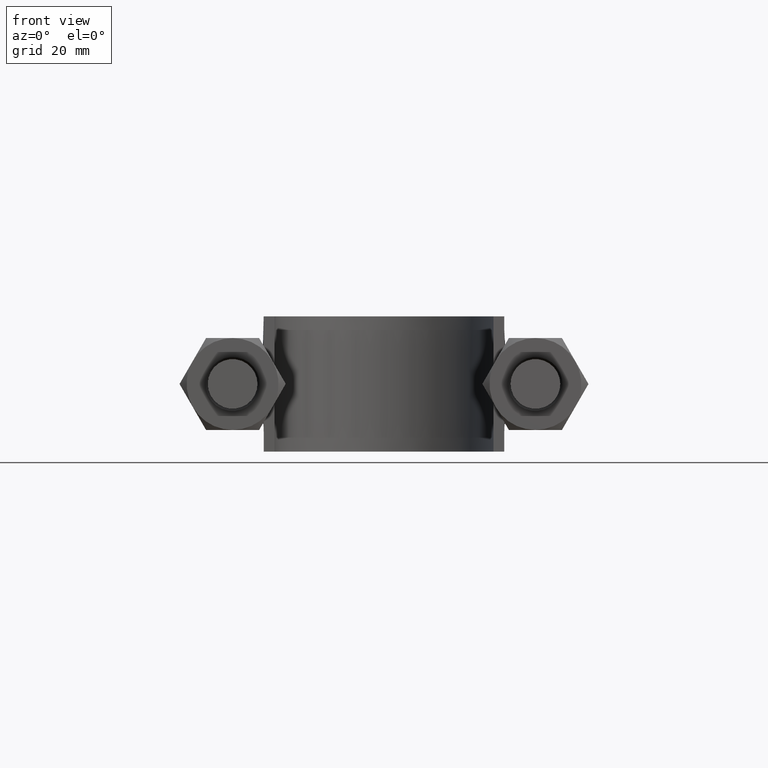
[diagram: clean part render]
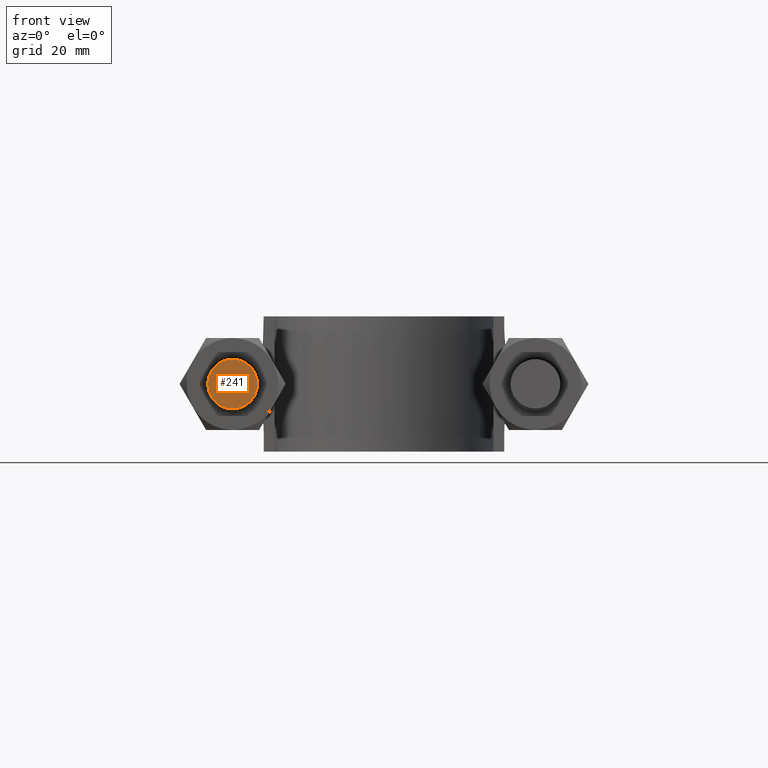
[diagram: same view with one face highlighted and labeled with its STEP entity id]
A machine part, front view. The second image highlights one B-rep face of the part: STEP entity #241.
In plain terms, the highlighted planar face has unit normal (-0, -1, -0).
Its self-contained STEP definition (entity closure, byte-faithful):
#241 = ADVANCED_FACE( '', ( #346 ), #347, .T. );
#346 = FACE_OUTER_BOUND( '', #1189, .T. );
#347 = PLANE( '', #1190 );
#1189 = EDGE_LOOP( '', ( #1459 ) );
#1190 = AXIS2_PLACEMENT_3D( '', #1460, #1461, #1462 );
#1459 = ORIENTED_EDGE( '', *, *, #1884, .T. );
#1460 = CARTESIAN_POINT( '', ( -28.0000000000000, 3.42889779070266E-015, 0.000000000000000 ) );
#1461 = DIRECTION( '', ( -1.22460635382238E-016, -1.00000000000000, -1.83690953073357E-016 ) );
#1462 = DIRECTION( '', ( -1.00000000000000, 1.22460635382238E-016, 0.000000000000000 ) );
#1884 = EDGE_CURVE( '', #2061, #2061, #2062, .T. );
#2061 = VERTEX_POINT( '', #2527 );
#2062 = CIRCLE( '', #2528, 4.60000000000000 );
#2527 = CARTESIAN_POINT( '', ( -32.6000000000000, 3.99221671346095E-015, 0.000000000000000 ) );
#2528 = AXIS2_PLACEMENT_3D( '', #2936, #2937, #2938 );
#2936 = CARTESIAN_POINT( '', ( -28.0000000000000, 3.42889779070266E-015, 0.000000000000000 ) );
#2937 = DIRECTION( '', ( -1.22460635382238E-016, -1.00000000000000, -1.83690953073357E-016 ) );
#2938 = DIRECTION( '', ( -1.00000000000000, 1.22460635382238E-016, 0.000000000000000 ) );